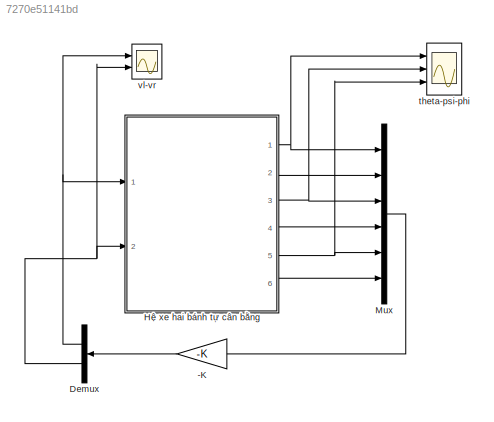
MODEL slx_7270e51141bd
KIND model
CONFIG AbsTol = auto
CONFIG EnableMultiTasking = off
CONFIG FixedStep = 0.01
CONFIG MaxStep = auto
CONFIG MinStep = auto
CONFIG RelTol = 1e-3
CONFIG SampleTimeConstraint = Unconstrained
CONFIG SolverName = FixedStepAuto
CONFIG StartTime = 0.0
CONFIG StopTime = 50
BLOCK [Gain] -K
  Gain = -K
  Multiplication = Matrix(K*u) (u vector)
  NameLocation = top
BLOCK [Demux] Demux
  NameLocation = top
  Outputs = 2
  Ports = [1, 2]
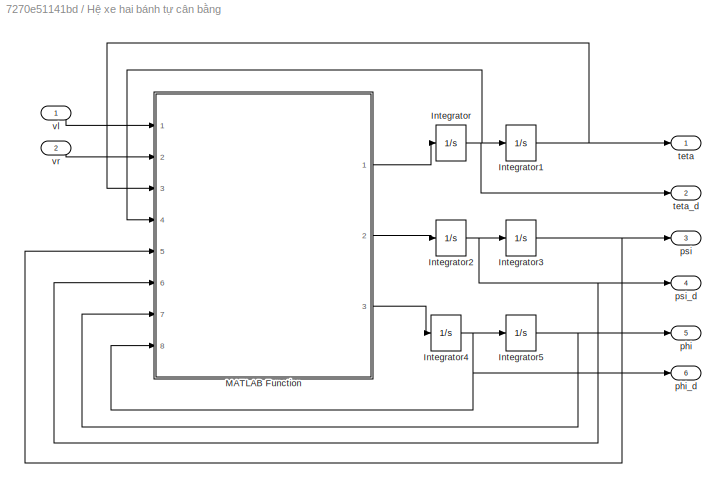
BLOCK [SubSystem] Hệ xe hai bánh tự cân bằng
  Ports = [2, 6]
  RequestExecContextInheritance = off
BLOCK [Integrator] Hệ xe hai bánh tự cân bằng/Integrator
  InitialCondition = x2_init
  Ports = [1, 1]
BLOCK [Integrator] Hệ xe hai bánh tự cân bằng/Integrator1
  InitialCondition = x1_init
  Ports = [1, 1]
BLOCK [Integrator] Hệ xe hai bánh tự cân bằng/Integrator2
  InitialCondition = x4_init
  Ports = [1, 1]
BLOCK [Integrator] Hệ xe hai bánh tự cân bằng/Integrator3
  InitialCondition = x3_init
  Ports = [1, 1]
BLOCK [Integrator] Hệ xe hai bánh tự cân bằng/Integrator4
  InitialCondition = x6_init
  Ports = [1, 1]
BLOCK [Integrator] Hệ xe hai bánh tự cân bằng/Integrator5
  InitialCondition = x5_init
  Ports = [1, 1]
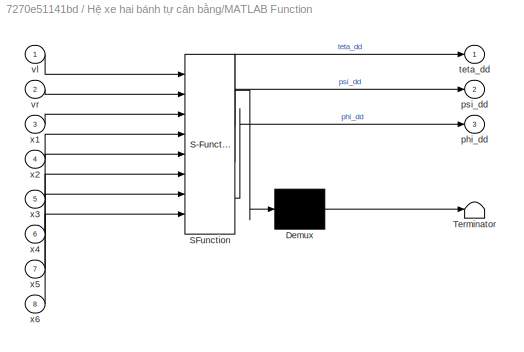
BLOCK [SubSystem] Hệ xe hai bánh tự cân bằng/MATLAB Function
  ErrorFcn = Stateflow.Translate.translate
  PermitHierarchicalResolution = ExplicitOnly
  Ports = [8, 3]
  RequestExecContextInheritance = off
  SFBlockType = MATLAB Function
  TreatAsAtomicUnit = on
BLOCK [Demux] Hệ xe hai bánh tự cân bằng/MATLAB Function/ Demux 
  Outputs = 1
  Ports = [1, 1]
BLOCK [S-Function] Hệ xe hai bánh tự cân bằng/MATLAB Function/ SFunction 
  EnableBusSupport = on
  FunctionName = sf_sfun
  PortCounts = [8 4]
  Ports = [8, 4]
  SFcnIsStateOwnerBlock = off
  SFunctionDeploymentMode = off
  Tag = Stateflow S-Function 2
BLOCK [Terminator] Hệ xe hai bánh tự cân bằng/MATLAB Function/ Terminator 
BLOCK [Outport] Hệ xe hai bánh tự cân bằng/MATLAB Function/phi_dd
  Port = 3
BLOCK [Outport] Hệ xe hai bánh tự cân bằng/MATLAB Function/psi_dd
  Port = 2
BLOCK [Outport] Hệ xe hai bánh tự cân bằng/MATLAB Function/teta_dd
BLOCK [Inport] Hệ xe hai bánh tự cân bằng/MATLAB Function/vl
BLOCK [Inport] Hệ xe hai bánh tự cân bằng/MATLAB Function/vr
  Port = 2
BLOCK [Inport] Hệ xe hai bánh tự cân bằng/MATLAB Function/x1
  Port = 3
BLOCK [Inport] Hệ xe hai bánh tự cân bằng/MATLAB Function/x2
  Port = 4
BLOCK [Inport] Hệ xe hai bánh tự cân bằng/MATLAB Function/x3
  Port = 5
BLOCK [Inport] Hệ xe hai bánh tự cân bằng/MATLAB Function/x4
  Port = 6
BLOCK [Inport] Hệ xe hai bánh tự cân bằng/MATLAB Function/x5
  Port = 7
BLOCK [Inport] Hệ xe hai bánh tự cân bằng/MATLAB Function/x6
  Port = 8
BLOCK [Outport] Hệ xe hai bánh tự cân bằng/phi
  Port = 5
BLOCK [Outport] Hệ xe hai bánh tự cân bằng/phi_d
  Port = 6
BLOCK [Outport] Hệ xe hai bánh tự cân bằng/psi
  Port = 3
BLOCK [Outport] Hệ xe hai bánh tự cân bằng/psi_d
  Port = 4
BLOCK [Outport] Hệ xe hai bánh tự cân bằng/teta
BLOCK [Outport] Hệ xe hai bánh tự cân bằng/teta_d
  Port = 2
BLOCK [Inport] Hệ xe hai bánh tự cân bằng/vl
BLOCK [Inport] Hệ xe hai bánh tự cân bằng/vr
  Port = 2
BLOCK [Mux] Mux
  DisplayOption = bar
  Inputs = 6
  Ports = [6, 1]
BLOCK [Scope] theta-psi-phi
  Floating = off
  NumInputPorts = 3
  Ports = [3]
  ScopeSpecificationString = Simulink.scopes.TimeScopeBlockCfg('CurrentConfiguration', extmgr.ConfigurationSet(extmgr.Configuration('Core','General UI',true,'FigureColor',[1 1 1]),extmgr.Configuration('Core','Source UI',true),extmgr.Configuration('Sources','WiredSimulink',true,'DataLogging',true,'DataLoggingSaveFormat','StructureWithTime'),extmgr.Configuration('Visuals','Time Domain',true,'SerializedDisplays',{struct('MinYLim...<+2469ch>
BLOCK [Scope] vl-vr
  Floating = off
  NumInputPorts = 2
  Ports = [2]
  ScopeSpecificationString = Simulink.scopes.TimeScopeBlockCfg('CurrentConfiguration', extmgr.ConfigurationSet(extmgr.Configuration('Core','General UI',true,'FigureColor',[1 1 1]),extmgr.Configuration('Core','Source UI',true),extmgr.Configuration('Sources','WiredSimulink',true,'DataLogging',true,'DataLoggingSaveFormat','StructureWithTime','DataLoggingVariableName','ScopeData3'),extmgr.Configuration('Visuals','Time Domain',tru...<+2490ch>
LINE -K:1 -> Demux:1
NET Demux:1 -> Hệ xe hai bánh tự cân bằng:1, vl-vr:1
NET Demux:2 -> Hệ xe hai bánh tự cân bằng:2, vl-vr:2
NET Hệ xe hai bánh tự cân bằng/Integrator1:1 -> Hệ xe hai bánh tự cân bằng/MATLAB Function:3, Hệ xe hai bánh tự cân bằng/teta:1
NET Hệ xe hai bánh tự cân bằng/Integrator2:1 -> Hệ xe hai bánh tự cân bằng/Integrator3:1, Hệ xe hai bánh tự cân bằng/MATLAB Function:6, Hệ xe hai bánh tự cân bằng/psi_d:1
NET Hệ xe hai bánh tự cân bằng/Integrator3:1 -> Hệ xe hai bánh tự cân bằng/MATLAB Function:5, Hệ xe hai bánh tự cân bằng/psi:1
NET Hệ xe hai bánh tự cân bằng/Integrator4:1 -> Hệ xe hai bánh tự cân bằng/Integrator5:1, Hệ xe hai bánh tự cân bằng/MATLAB Function:8, Hệ xe hai bánh tự cân bằng/phi_d:1
NET Hệ xe hai bánh tự cân bằng/Integrator5:1 -> Hệ xe hai bánh tự cân bằng/MATLAB Function:7, Hệ xe hai bánh tự cân bằng/phi:1
NET Hệ xe hai bánh tự cân bằng/Integrator:1 -> Hệ xe hai bánh tự cân bằng/Integrator1:1, Hệ xe hai bánh tự cân bằng/MATLAB Function:4, Hệ xe hai bánh tự cân bằng/teta_d:1
LINE Hệ xe hai bánh tự cân bằng/MATLAB Function:1 -> Hệ xe hai bánh tự cân bằng/Integrator:1
LINE Hệ xe hai bánh tự cân bằng/MATLAB Function:2 -> Hệ xe hai bánh tự cân bằng/Integrator2:1
LINE Hệ xe hai bánh tự cân bằng/MATLAB Function:3 -> Hệ xe hai bánh tự cân bằng/Integrator4:1
LINE Hệ xe hai bánh tự cân bằng/vl:1 -> Hệ xe hai bánh tự cân bằng/MATLAB Function:1
LINE Hệ xe hai bánh tự cân bằng/vr:1 -> Hệ xe hai bánh tự cân bằng/MATLAB Function:2
NET Hệ xe hai bánh tự cân bằng:1 -> Mux:1, theta-psi-phi:1
LINE Hệ xe hai bánh tự cân bằng:2 -> Mux:2
NET Hệ xe hai bánh tự cân bằng:3 -> Mux:3, theta-psi-phi:2
LINE Hệ xe hai bánh tự cân bằng:4 -> Mux:4
NET Hệ xe hai bánh tự cân bằng:5 -> Mux:5, theta-psi-phi:3
LINE Hệ xe hai bánh tự cân bằng:6 -> Mux:6
LINE Mux:1 -> -K:1
note: NET lines group one-source signal fan-out (src -> all destinations, sorted); 1:1 wires keep LINE
CHART Hệ xe hai bánh tự cân bằng/MATLAB Function states=1 transitions=1
  STATE_LABEL 'eML_blk_kernel()'
  STATE_LABEL 'SCRIPT:\nfunction [teta_dd,psi_dd,phi_dd] = system(vl,vr,x1,x2,x3,x4,x5,x6)\n%% Thông số hệ thống xe 2 bánh tự cân bằng dùng LQR\nm = 0.042; %Khoi luong banh xe\nM = 1.08; %Khoi luong robot\nR = 0.0325; %ban kinh ban xe\nW = 0.170; %Chieu rong robot\nD = 0.100; %Chieu ngang robot\nH = 0.1415; %Chieu cao robot\nL = H/2; %khoang cach tu trong tam den truc banh xe\nfw = 0.18; %He so ma sat giua banh xe voi mat...<+2080ch>'
CHART  states=0 transitions=0
